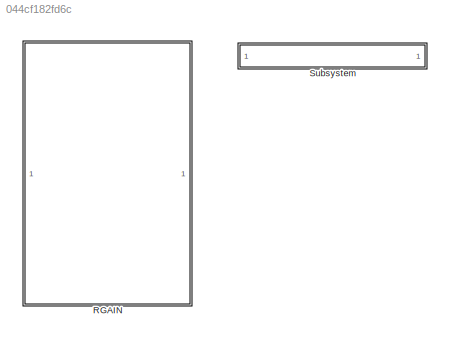
MODEL slx_044cf182fd6c
KIND library
CONFIG AbsTol = auto
CONFIG EnableMultiTasking = off
CONFIG FixedStep = auto
CONFIG MaxStep = auto
CONFIG MinStep = auto
CONFIG RelTol = 1e-3
CONFIG SampleTimeConstraint = Unconstrained
CONFIG SolverName = VariableStepAuto
CONFIG StartTime = 0.0
CONFIG StopTime = 10.0
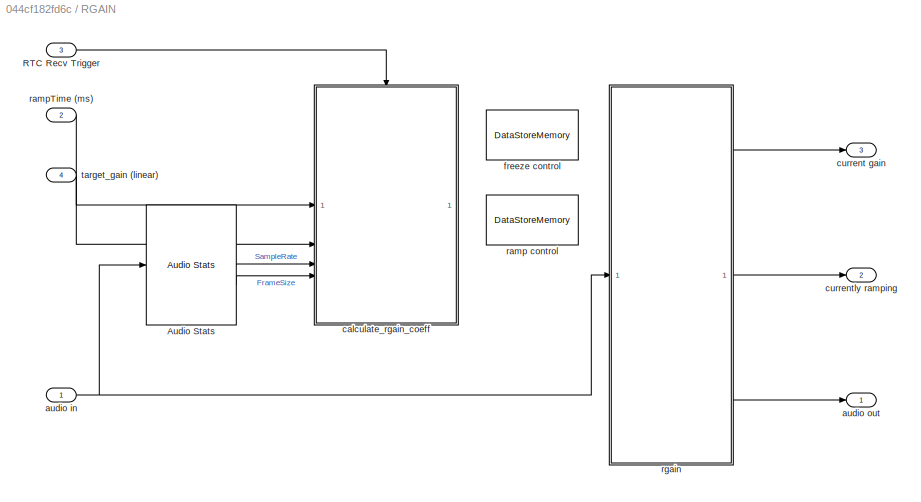
BLOCK [SubSystem] RGAIN
BLOCK [Reference] RGAIN/Audio Stats  REF=AudioStats/Audio Stats
  SourceBlock = AudioStats/Audio Stats
  SourceType = Bose Audio Stats
BLOCK [Inport] RGAIN/RTC Recv Trigger
  Port = 3
BLOCK [Inport] RGAIN/audio in
BLOCK [Outport] RGAIN/audio out
  VectorParamsAs1DForOutWhenUnconnected = off
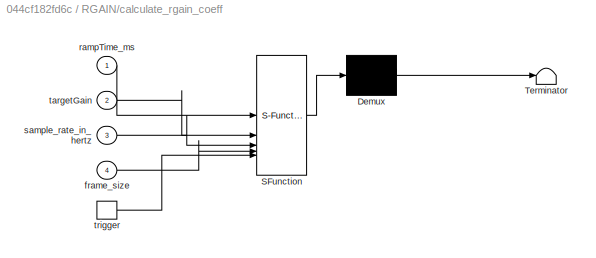
BLOCK [SubSystem] RGAIN/calculate_rgain_coeff
  ErrorFcn = Stateflow.Translate.translate
  PermitHierarchicalResolution = ExplicitOnly
  RTWSystemCode = Reusable function
  SFBlockType = MATLAB Function
  TreatAsAtomicUnit = on
BLOCK [Demux] RGAIN/calculate_rgain_coeff/ Demux 
  Outputs = 1
BLOCK [S-Function] RGAIN/calculate_rgain_coeff/ SFunction 
  EnableBusSupport = off
  FunctionName = sf_sfun
  Parameters = rgain_SILENT_GAIN
  PortCounts = [5 1]
  SFcnIsStateOwnerBlock = off
  SFunctionDeploymentMode = off
  Tag = Stateflow S-Function 4
BLOCK [Terminator] RGAIN/calculate_rgain_coeff/ Terminator 
BLOCK [Inport] RGAIN/calculate_rgain_coeff/frame_size
  Port = 4
BLOCK [Inport] RGAIN/calculate_rgain_coeff/rampTime_ms
BLOCK [Inport] RGAIN/calculate_rgain_coeff/sample_rate_in_hertz
  Port = 3
BLOCK [Inport] RGAIN/calculate_rgain_coeff/targetGain
  Port = 2
BLOCK [TriggerPort] RGAIN/calculate_rgain_coeff/trigger
  ShowOutputPort = on
  StatesWhenEnabling = held
  TriggerType = function-call
  VariantControl = Variant
BLOCK [Outport] RGAIN/current gain
  Port = 3
  VectorParamsAs1DForOutWhenUnconnected = off
BLOCK [Outport] RGAIN/currently ramping
  Port = 2
  VectorParamsAs1DForOutWhenUnconnected = off
BLOCK [DataStoreMemory] RGAIN/freeze control
  DataStoreName = FreezeSequence
  InitialValue = [0,0]
  OutDataTypeStr = uint32
  ShowAdditionalParam = off
  SignalType = real
BLOCK [DataStoreMemory] RGAIN/ramp control
  DataStoreName = Ramper
  InitialValue = MASK_CONTROL_INIT
  OutDataTypeStr = Bus: rgain_bus
  ShowAdditionalParam = off
BLOCK [Inport] RGAIN/rampTime (ms)
  Port = 2
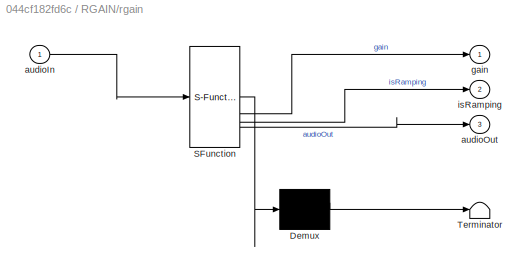
BLOCK [SubSystem] RGAIN/rgain
  ErrorFcn = Stateflow.Translate.translate
  PermitHierarchicalResolution = ExplicitOnly
  RTWSystemCode = Reusable function
  SFBlockType = MATLAB Function
  TreatAsAtomicUnit = on
BLOCK [Demux] RGAIN/rgain/ Demux 
  Outputs = 1
BLOCK [S-Function] RGAIN/rgain/ SFunction 
  EnableBusSupport = off
  FunctionName = sf_sfun
  PortCounts = [1 4]
  SFcnIsStateOwnerBlock = off
  SFunctionDeploymentMode = off
  Tag = Stateflow S-Function 5
BLOCK [Terminator] RGAIN/rgain/ Terminator 
BLOCK [Inport] RGAIN/rgain/audioIn
BLOCK [Outport] RGAIN/rgain/audioOut
  Port = 3
  VectorParamsAs1DForOutWhenUnconnected = off
BLOCK [Outport] RGAIN/rgain/gain
  VectorParamsAs1DForOutWhenUnconnected = off
BLOCK [Outport] RGAIN/rgain/isRamping
  Port = 2
  VectorParamsAs1DForOutWhenUnconnected = off
BLOCK [Inport] RGAIN/target_gain (linear)
  Port = 4
BLOCK [SubSystem] Subsystem
  OpenFcn = edit(get(gcbh,'filename'));
LINE RGAIN/Audio Stats:1 -> RGAIN/calculate_rgain_coeff:3
LINE RGAIN/Audio Stats:2 -> RGAIN/calculate_rgain_coeff:4
LINE RGAIN/RTC Recv Trigger:1 -> RGAIN/calculate_rgain_coeff:trigger
NET RGAIN/audio in:1 -> RGAIN/Audio Stats:1, RGAIN/rgain:1
LINE RGAIN/rampTime (ms):1 -> RGAIN/calculate_rgain_coeff:1
LINE RGAIN/rgain:1 -> RGAIN/current gain:1
LINE RGAIN/rgain:2 -> RGAIN/currently ramping:1
LINE RGAIN/rgain:3 -> RGAIN/audio out:1
LINE RGAIN/target_gain (linear):1 -> RGAIN/calculate_rgain_coeff:2
note: NET lines group one-source signal fan-out (src -> all destinations, sorted); 1:1 wires keep LINE
CHART RGAIN/calculate_rgain_coeff states=1 transitions=1
  STATE_LABEL 'eML_blk_kernel()'
  STATE_LABEL 'SCRIPT:\nfunction calculate_rgain_coeff(...\n     rampTime_ms, targetGain, sample_rate_in_hertz, frame_size, rgain_SILENT_GAIN)\n%#codegen\n\nglobal Ramper;\nglobal FreezeSequence;\n\n\n% Step 1: FREEZE the gain ramper so that we can perform calculations based\n% on the current gain value. Also, record the control sequence number used\n% to specify this soon-to-be-calculated target state.\nFreezeSequence(1) =...<+1964ch>'
CHART RGAIN/rgain states=1 transitions=1
  STATE_LABEL 'eML_blk_kernel()'
  STATE_LABEL 'SCRIPT:\nfunction [gain, isRamping, audioOut]  = rgain(audioIn)\n%#codegen\n\nglobal Ramper;\nglobal FreezeSequence;\n\n% set the size of the output buffer\naudioOut = coder.nullcopy(audioIn);\n\n% figure out the frame size\n[frame_size, channel_count] = size(audioIn);\n\n% Unpack the control info\nframeCount = Ramper.frameCount;\nrampCoeff = Ramper.rampCoeff;\ntargetGain = Ramper.targetGain;\ngain = Ramper.curren...<+586ch>'
CHART  states=0 transitions=0
CHART  states=0 transitions=0
